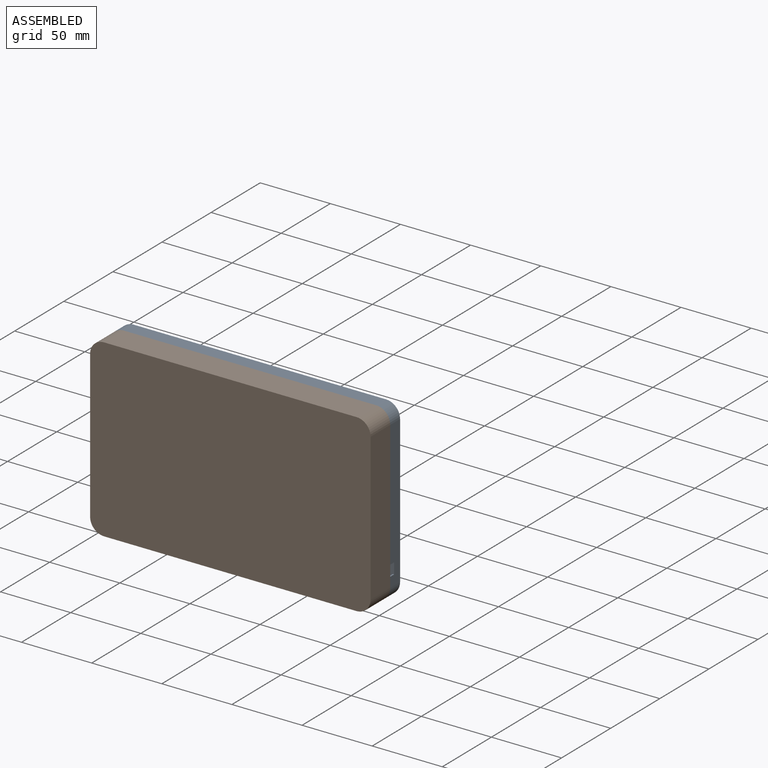
[diagram: assembled view]
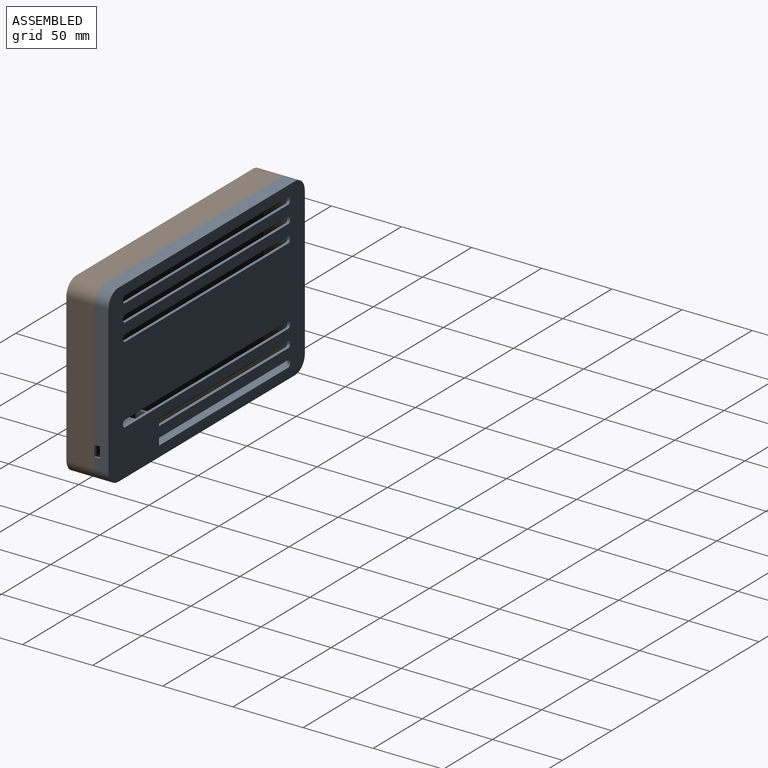
[diagram: assembled view, second angle]
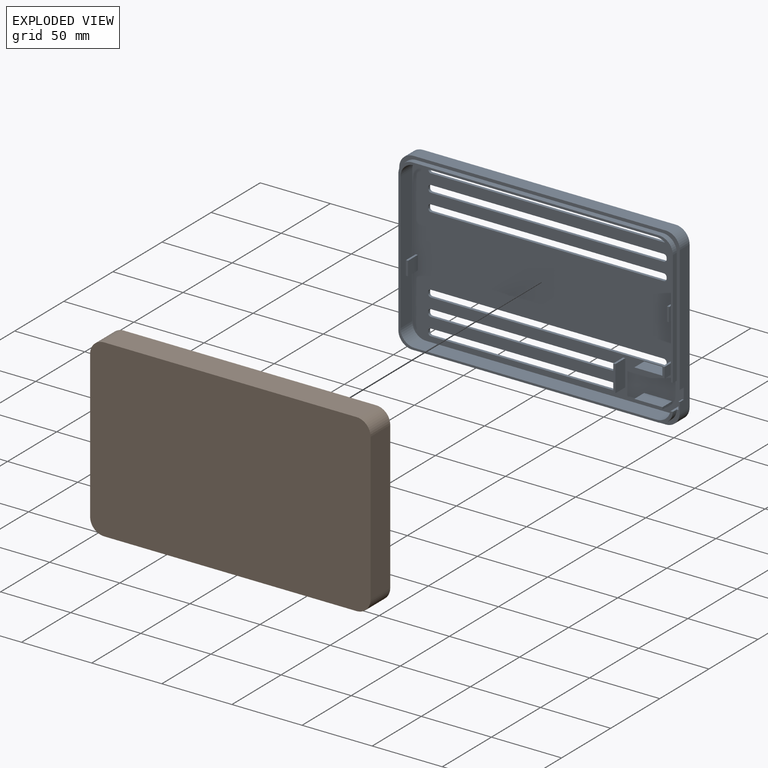
[diagram: exploded view]
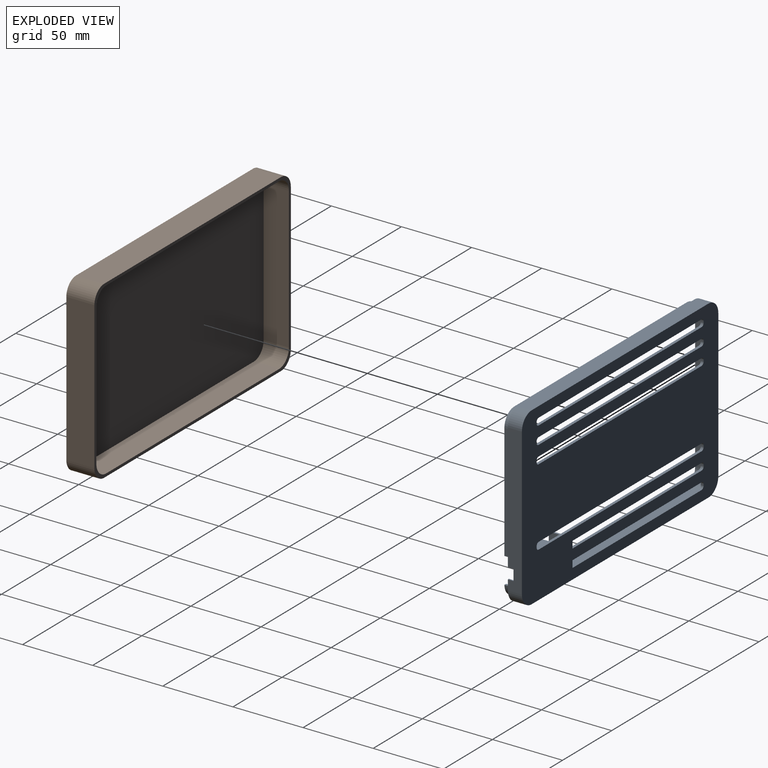
[diagram: exploded view, second angle]
ASSEMBLY  parts=2 mates=3
PART A: 105 faces, bbox 200x14x125 mm
  f0: plane 195.35x117.7mm, normal (0,1,0), area 17796.6mm2, adj f3,f23,f24,f25,f26,f27,f28,f29
  f1: plane 200x125mm, normal (0,1,0), area 1349.8mm2, adj f2,f6,f7,f8,f9,f10,f11,f12
  f2: plane 82.5x4mm, normal (-1,0,0), area 330mm2, adj f1,f4,f17,f31
  f3: plane 81x12mm, normal (1,0,0), area 972mm2, adj f0,f4,f27,f31
  f4: plane 195.7x120.7mm, normal (0,1,0), area 912.2mm2, adj f2,f3,f17,f18,f19,f20,f21,f22
  f5: plane 7.8x1mm, normal (0,1,0), area 7.8mm2, adj f6,f7,f8,f33
  f6: plane 4x1mm, normal (0,0,-1), area 4mm2, adj f1,f5,f8,f33
  f7: plane 4x1mm, normal (0,0,1), area 4mm2, adj f1,f5,f8,f33
  f8: plane 105x10mm, normal (-1,0,0), area 1018.8mm2, adj f1,f5,f6,f7,f12,f13,f16
  f9: plane 105x10mm, normal (1,0,0), area 1050mm2, adj f1,f10,f15,f16
  f10: cylinder r=10mm len=10mm, axis (0,-1,0), area 157.1mm2, adj f1,f9,f11,f16
  f11: plane 180x10mm, normal (0,0,1), area 1800mm2, adj f1,f10,f12,f16
  f12: cylinder r=10mm len=10mm, axis (0,-1,0), area 157.1mm2, adj f1,f8,f11,f16
  f13: cylinder r=10mm len=10mm, axis (0,-1,0), area 157.1mm2, adj f1,f8,f14,f16
  f14: plane 180x10mm, normal (0,0,-1), area 1800mm2, adj f1,f13,f15,f16
  f15: cylinder r=10mm len=10mm, axis (0,-1,0), area 157.1mm2, adj f1,f9,f14,f16
  f16: plane 200x125mm, normal (0,-1,0), area 20195.8mm2, adj f8,f9,f10,f11,f12,f13,f14,f15
  f17: cylinder r=10mm len=10mm, axis (0,-1,0), area 62.8mm2, adj f1,f2,f4,f18
  f18: plane 175.7x4mm, normal (0,0,1), area 702.8mm2, adj f1,f4,f17,f19
  f19: cylinder r=10mm len=10mm, axis (0,-1,0), area 62.8mm2, adj f1,f4,f18,f20
  f20: plane 100.7x4mm, normal (1,0,0), area 402.8mm2, adj f1,f4,f19,f21
  f21: cylinder r=10mm len=10mm, axis (0,-1,0), area 62.8mm2, adj f1,f4,f20,f22
  f22: plane 175.7x4mm, normal (0,0,-1), area 702.8mm2, adj f1,f4,f21,f30
  f23: cylinder r=10mm len=12mm, axis (0,-1,0), area 188.5mm2, adj f0,f4,f24,f29
  f24: plane 97.7x12mm, normal (-1,0,0), area 1172.4mm2, adj f0,f4,f23,f25
  f25: cylinder r=10mm len=12mm, axis (0,-1,0), area 188.5mm2, adj f0,f4,f24,f26
  f26: plane 172.7x12mm, normal (0,0,-1), area 2072.4mm2, adj f0,f4,f25,f27
  f27: cylinder r=10mm len=12mm, axis (0,-1,0), area 188.5mm2, adj f0,f3,f4,f26
  f28: cylinder r=10mm len=12mm, axis (0,-1,0), area 165.6mm2, adj f0,f4,f29,f32
  f29: plane 172.7x12mm, normal (0,0,1), area 2072.4mm2, adj f0,f4,f23,f28
  f30: cylinder r=10mm len=9.99mm, axis (0,-1,0), area 61.2mm2, adj f1,f4,f22,f32
  f31: plane 12x2.65mm, normal (0,0,-1), area 27.2mm2, adj f0,f1,f2,f3,f4,f33
  f32: plane 12x2.83mm, normal (0,0,1), area 29.4mm2, adj f0,f1,f4,f28,f30,f33
  f33: plane 18.6x8mm, normal (1,0,0), area 117.6mm2, adj f0,f1,f5,f6,f7,f31,f32
  f34: cylinder r=2mm len=2mm, axis (0,1,0), area 6.3mm2, adj f0,f16,f35,f39
  f35: plane 2x1mm, normal (1,0,0), area 2mm2, adj f0,f16,f34,f36
  f36: cylinder r=2mm len=2mm, axis (0,1,0), area 6.3mm2, adj f0,f16,f35,f37
  f37: plane 166x2mm, normal (0,0,-1), area 332mm2, adj f0,f16,f36,f38
  f38: cylinder r=2mm len=2mm, axis (0,1,0), area 6.3mm2, adj f0,f16,f37,f40
  f39: plane 166x2mm, normal (0,0,1), area 332mm2, adj f0,f16,f34,f41
  f40: plane 2x1mm, normal (-1,0,0), area 2mm2, adj f0,f16,f38,f41
  f41: cylinder r=2mm len=2mm, axis (0,1,0), area 6.3mm2, adj f0,f16,f39,f40
  f42: cylinder r=2mm len=2mm, axis (0,1,0), area 6.3mm2, adj f0,f16,f43,f47
  f43: plane 2x1mm, normal (-1,0,0), area 2mm2, adj f0,f16,f42,f44
  f44: cylinder r=2mm len=2mm, axis (0,1,0), area 6.3mm2, adj f0,f16,f43,f45
  f45: plane 166x2mm, normal (0,0,1), area 332mm2, adj f0,f16,f44,f46
  f46: cylinder r=2mm len=2mm, axis (0,1,0), area 6.3mm2, adj f0,f16,f45,f48
  f47: plane 166x2mm, normal (0,0,-1), area 332mm2, adj f0,f16,f42,f49
  f48: plane 2x1mm, normal (1,0,0), area 2mm2, adj f0,f16,f46,f49
  f49: cylinder r=2mm len=2mm, axis (0,1,0), area 6.3mm2, adj f0,f16,f47,f48
  f50: cylinder r=2mm len=2mm, axis (0,1,0), area 6.3mm2, adj f0,f16,f51,f55
  f51: plane 2x1mm, normal (-1,0,0), area 2mm2, adj f0,f16,f50,f52
  f52: cylinder r=2mm len=2mm, axis (0,1,0), area 6.3mm2, adj f0,f16,f51,f53
  f53: plane 166x2mm, normal (0,0,1), area 332mm2, adj f0,f16,f52,f54
  f54: cylinder r=2mm len=2mm, axis (0,1,0), area 6.3mm2, adj f0,f16,f53,f56
  f55: plane 166x2mm, normal (0,0,-1), area 332mm2, adj f0,f16,f50,f57
  f56: plane 2x1mm, normal (1,0,0), area 2mm2, adj f0,f16,f54,f57
  f57: cylinder r=2mm len=2mm, axis (0,1,0), area 6.3mm2, adj f0,f16,f55,f56
  f58: plane 131.55x2mm, normal (0,0,-1), area 263.1mm2, adj f0,f16,f59,f104
  f59: cylinder r=2mm len=2mm, axis (0,1,0), area 6.3mm2, adj f0,f16,f58,f60
  f60: plane 2x1mm, normal (-1,0,0), area 2mm2, adj f0,f16,f59,f61
  f61: cylinder r=2mm len=2mm, axis (0,1,0), area 6.3mm2, adj f0,f16,f60,f62
  f62: plane 131.55x2mm, normal (0,0,1), area 263.1mm2, adj f0,f16,f61,f104
  f63: cylinder r=2mm len=2mm, axis (0,1,0), area 6.3mm2, adj f0,f16,f64,f68
  f64: plane 166x2mm, normal (0,0,-1), area 332mm2, adj f0,f16,f63,f65
  f65: cylinder r=2mm len=2mm, axis (0,1,0), area 6.3mm2, adj f0,f16,f64,f66
  f66: plane 2x1mm, normal (-1,0,0), area 2mm2, adj f0,f16,f65,f67
  f67: cylinder r=2mm len=2mm, axis (0,1,0), area 6.3mm2, adj f0,f16,f66,f69
  f68: plane 2x1mm, normal (1,0,0), area 2mm2, adj f0,f16,f63,f70
  f69: plane 166x2mm, normal (0,0,1), area 332mm2, adj f0,f16,f67,f70
  f70: cylinder r=2mm len=2mm, axis (0,1,0), area 6.3mm2, adj f0,f16,f68,f69
  f71: plane 131.55x2mm, normal (0,0,-1), area 263.1mm2, adj f0,f16,f72,f103
  f72: cylinder r=2mm len=2mm, axis (0,1,0), area 6.3mm2, adj f0,f16,f71,f73
  f73: plane 2x1mm, normal (-1,0,0), area 2mm2, adj f0,f16,f72,f74
  f74: cylinder r=2mm len=2mm, axis (0,1,0), area 6.3mm2, adj f0,f16,f73,f75
  f75: plane 131.55x2mm, normal (0,0,1), area 263.1mm2, adj f0,f16,f74,f103
  f76: plane 21.5x10mm, normal (0,0,-1), area 215mm2, adj f0,f77,f81,f82
  f77: plane 10x7.5mm, normal (-1,0,0), area 75mm2, adj f0,f76,f78,f82
  f78: plane 10x1.5mm, normal (0,0,1), area 15mm2, adj f0,f77,f79,f82
  f79: plane 10x6mm, normal (1,0,0), area 60mm2, adj f0,f78,f80,f82
  f80: plane 20x10mm, normal (0,0,1), area 200mm2, adj f0,f79,f81,f82
  f81: plane 10x1.5mm, normal (1,0,0), area 15mm2, adj f0,f76,f80,f82
  f82: plane 21.5x7.5mm, normal (0,1,0), area 41.3mm2, adj f76,f77,f78,f79,f80,f81
  f83: plane 10x1.5mm, normal (0,0,1), area 15mm2, adj f0,f84,f86,f87
  f84: plane 18.8x10mm, normal (1,0,0), area 188mm2, adj f0,f83,f85,f87
  f85: plane 10x1.5mm, normal (0,0,-1), area 15mm2, adj f0,f84,f86,f87
  f86: plane 18.8x10mm, normal (-1,0,0), area 188mm2, adj f0,f83,f85,f87
  f87: plane 18.8x1.5mm, normal (0,1,0), area 28.2mm2, adj f83,f84,f85,f86
  f88: plane 10x1.5mm, normal (-1,0,0), area 15mm2, adj f0,f89,f91,f92
  f89: plane 20x10mm, normal (0,0,1), area 200mm2, adj f0,f88,f90,f92
  f90: plane 10x1.5mm, normal (1,0,0), area 15mm2, adj f0,f89,f91,f92
  f91: plane 20x10mm, normal (0,0,-1), area 200mm2, adj f0,f88,f90,f92
  f92: plane 20x1.5mm, normal (0,1,0), area 30mm2, adj f88,f89,f90,f91
  f93: plane 10x1.5mm, normal (0,0,1), area 15mm2, adj f0,f94,f96,f97
  f94: plane 10x10mm, normal (1,0,0), area 100mm2, adj f0,f93,f95,f97
  f95: plane 10x1.5mm, normal (0,0,-1), area 15mm2, adj f0,f94,f96,f97
  f96: plane 10x10mm, normal (-1,0,0), area 100mm2, adj f0,f93,f95,f97
  f97: plane 10x1.5mm, normal (0,1,0), area 15mm2, adj f93,f94,f95,f96
  f98: plane 10x1.5mm, normal (0,0,1), area 15mm2, adj f0,f99,f101,f102
  f99: plane 10x10mm, normal (1,0,0), area 100mm2, adj f0,f98,f100,f102
  f100: plane 10x1.5mm, normal (0,0,-1), area 15mm2, adj f0,f99,f101,f102
  f101: plane 10x10mm, normal (-1,0,0), area 100mm2, adj f0,f98,f100,f102
  f102: plane 10x1.5mm, normal (0,1,0), area 15mm2, adj f98,f99,f100,f101
  f103: plane 5x2mm, normal (1,0,0), area 10mm2, adj f0,f16,f71,f75
  f104: plane 5x2mm, normal (1,0,0), area 10mm2, adj f0,f16,f58,f62
PART B: 19 faces, bbox 200x20x125 mm
  f0: plane 105x20mm, normal (1,0,0), area 2100mm2, adj f1,f7,f8,f17
  f1: cylinder r=10mm len=20mm, axis (0,-1,0), area 314.2mm2, adj f0,f2,f8,f17
  f2: plane 180x20mm, normal (0,0,1), area 3600mm2, adj f1,f3,f8,f17
  f3: cylinder r=10mm len=20mm, axis (0,-1,0), area 314.2mm2, adj f2,f4,f8,f17
  f4: plane 105x20mm, normal (-1,0,0), area 2100mm2, adj f3,f5,f8,f17
  f5: cylinder r=10mm len=20mm, axis (0,-1,0), area 314.2mm2, adj f4,f6,f8,f17
  f6: plane 180x20mm, normal (0,0,-1), area 3600mm2, adj f5,f7,f8,f17
  f7: cylinder r=10mm len=20mm, axis (0,-1,0), area 314.2mm2, adj f0,f6,f8,f17
  f8: plane 200x125mm, normal (0,-1,0), area 24914.2mm2, adj f0,f1,f2,f3,f4,f5,f6,f7
  f9: cylinder r=10mm len=18mm, axis (0,-1,0), area 282.7mm2, adj f10,f16,f17,f18
  f10: plane 101x18mm, normal (1,0,0), area 1818mm2, adj f9,f11,f17,f18
  f11: cylinder r=10mm len=18mm, axis (0,-1,0), area 282.7mm2, adj f10,f12,f17,f18
  f12: plane 176x18mm, normal (0,0,1), area 3168mm2, adj f11,f13,f17,f18
  f13: cylinder r=10mm len=18mm, axis (0,-1,0), area 282.7mm2, adj f12,f14,f17,f18
  f14: plane 101x18mm, normal (-1,0,0), area 1818mm2, adj f13,f15,f17,f18
  f15: cylinder r=10mm len=18mm, axis (0,-1,0), area 282.7mm2, adj f14,f16,f17,f18
  f16: plane 176x18mm, normal (0,0,-1), area 3168mm2, adj f9,f15,f17,f18
  f17: plane 200x125mm, normal (0,1,0), area 1284mm2, adj f0,f1,f2,f3,f4,f5,f6,f7
  f18: plane 196x121mm, normal (0,1,0), area 23630.2mm2, adj f9,f10,f11,f12,f13,f14,f15,f16
PLACE A rot(axis=(0,0,1),180deg) t=(0,71.2,0)mm
PLACE B rot(axis=(0,0,1),0deg) t=(0,41.2,0)mm
MATE planar B.f17 <-> A.f1  axis (0,1,0) through (-90,61.2,62.5)mm
MATE parallel B.f2 <-> A.f11  axis (0,0,1) through (0,41.2,62.5)mm
MATE parallel A.f9 <-> B.f4  axis (-1,0,0) through (-100,66.2,0)mm
